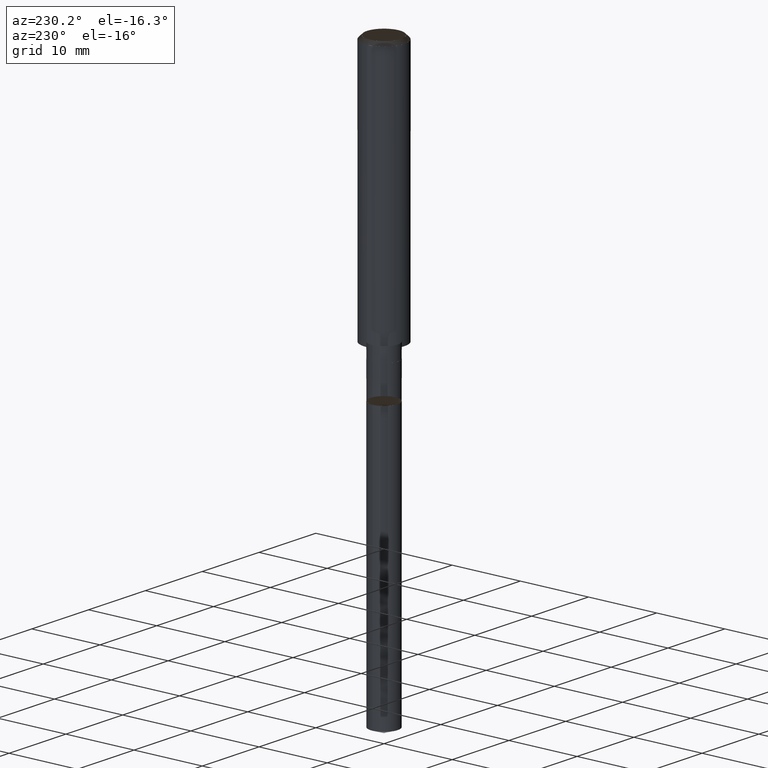
[diagram: clean part render]
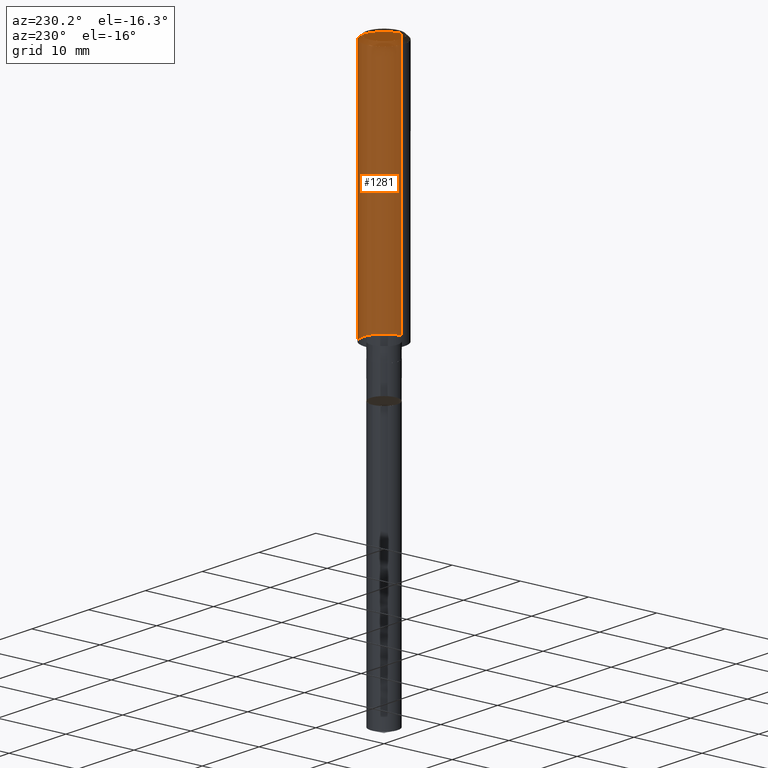
[diagram: same view with one face highlighted and labeled with its STEP entity id]
A machine part, auxiliary view. The second image highlights one B-rep face of the part: STEP entity #1281.
In plain terms, the highlighted face is a freeform B-spline surface patch.
Its self-contained STEP definition (entity closure, byte-faithful):
#1042=CARTESIAN_POINT('',(3.0,0.0,0.0));
#1043=CARTESIAN_POINT('',(3.0,3.0,0.0));
#1044=CARTESIAN_POINT('',(0.0,3.0,0.0));
#1045=CARTESIAN_POINT('',(-3.0,3.0,0.0));
#1046=CARTESIAN_POINT('',(-3.0,0.0,0.0));
#1047=CARTESIAN_POINT('',(3.0,0.0,35.5));
#1048=CARTESIAN_POINT('',(3.0,3.0,35.5));
#1049=CARTESIAN_POINT('',(0.0,3.0,35.5));
#1050=CARTESIAN_POINT('',(-3.0,3.0,35.5));
#1051=CARTESIAN_POINT('',(-3.0,0.0,35.5));
#1262=(
BOUNDED_SURFACE()
B_SPLINE_SURFACE(1,2,(
(#1042,#1043,#1044,#1045,#1046),
(#1047,#1048,#1049,#1050,#1051)
), .UNSPECIFIED.,.F.,.F.,.F.)
B_SPLINE_SURFACE_WITH_KNOTS((2,2),(3,2,3),(
0.0,1.0),(
0.0,0.5,1.0), .UNSPECIFIED.)
GEOMETRIC_REPRESENTATION_ITEM()
RATIONAL_B_SPLINE_SURFACE(((1.0,0.707106781187,1.0,0.707106781187,1.0),
(1.0,0.707106781187,1.0,0.707106781187,1.0)
))
REPRESENTATION_ITEM('')
SURFACE()
);
#1263=(
BOUNDED_CURVE()
B_SPLINE_CURVE(2,(#1046,#1045,#1044,#1043,#1042),.UNSPECIFIED.,.F.,.F.)
B_SPLINE_CURVE_WITH_KNOTS((3,2,3),
(0.0,0.5,1.0),.UNSPECIFIED.)
CURVE()
GEOMETRIC_REPRESENTATION_ITEM()
RATIONAL_B_SPLINE_CURVE((1.0,0.707106781187,1.0,0.707106781187,1.0))
REPRESENTATION_ITEM('')
);
#1264=(
BOUNDED_CURVE()
B_SPLINE_CURVE(1,(#1042,#1047),.UNSPECIFIED.,.F.,.F.)
B_SPLINE_CURVE_WITH_KNOTS((2,2),
(0.0,1.0),.UNSPECIFIED.)
CURVE()
GEOMETRIC_REPRESENTATION_ITEM()
RATIONAL_B_SPLINE_CURVE((1.0,1.0))
REPRESENTATION_ITEM('')
);
#1265=(
BOUNDED_CURVE()
B_SPLINE_CURVE(2,(#1047,#1048,#1049,#1050,#1051),.UNSPECIFIED.,.F.,.F.)
B_SPLINE_CURVE_WITH_KNOTS((3,2,3),
(0.0,0.5,1.0),.UNSPECIFIED.)
CURVE()
GEOMETRIC_REPRESENTATION_ITEM()
RATIONAL_B_SPLINE_CURVE((1.0,0.707106781187,1.0,0.707106781187,1.0))
REPRESENTATION_ITEM('')
);
#1266=(
BOUNDED_CURVE()
B_SPLINE_CURVE(1,(#1051,#1046),.UNSPECIFIED.,.F.,.F.)
B_SPLINE_CURVE_WITH_KNOTS((2,2),
(0.0,1.0),.UNSPECIFIED.)
CURVE()
GEOMETRIC_REPRESENTATION_ITEM()
RATIONAL_B_SPLINE_CURVE((1.0,1.0))
REPRESENTATION_ITEM('')
);
#1267=VERTEX_POINT('',#1042);
#1268=VERTEX_POINT('',#1046);
#1269=VERTEX_POINT('',#1047);
#1270=VERTEX_POINT('',#1051);
#1271=EDGE_CURVE('',#1268,#1267,#1263,.T.);
#1272=EDGE_CURVE('',#1267,#1269,#1264,.T.);
#1273=EDGE_CURVE('',#1269,#1270,#1265,.T.);
#1274=EDGE_CURVE('',#1270,#1268,#1266,.T.);
#1275=ORIENTED_EDGE('',*,*,#1271,.T.);
#1276=ORIENTED_EDGE('',*,*,#1272,.T.);
#1277=ORIENTED_EDGE('',*,*,#1273,.T.);
#1278=ORIENTED_EDGE('',*,*,#1274,.T.);
#1279=EDGE_LOOP('',(#1275,#1276,#1277,#1278));
#1280=FACE_OUTER_BOUND('',#1279,.T.);
#1281=ADVANCED_FACE('',(#1280),#1262,.T.);